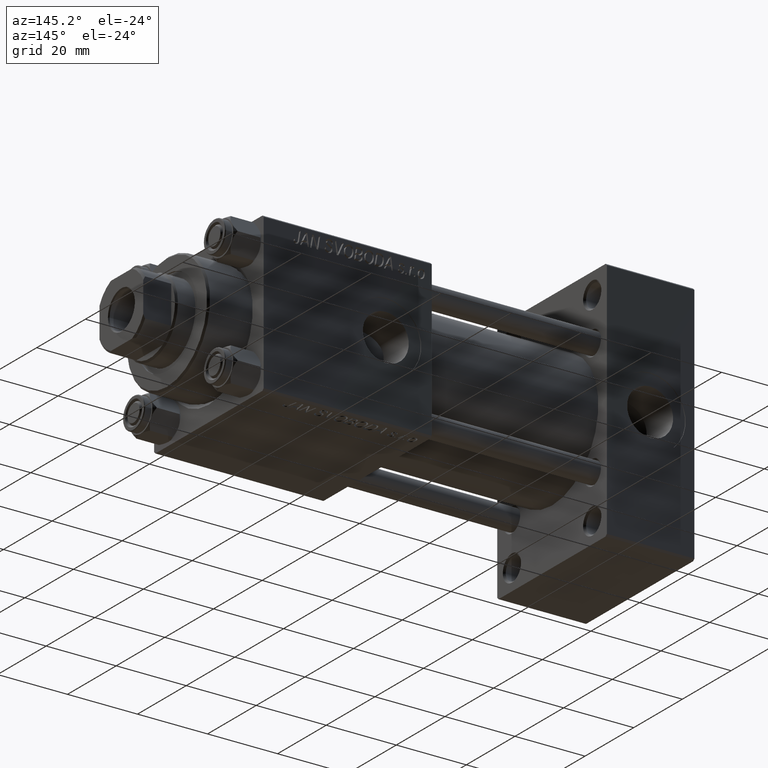
[diagram: clean part render]
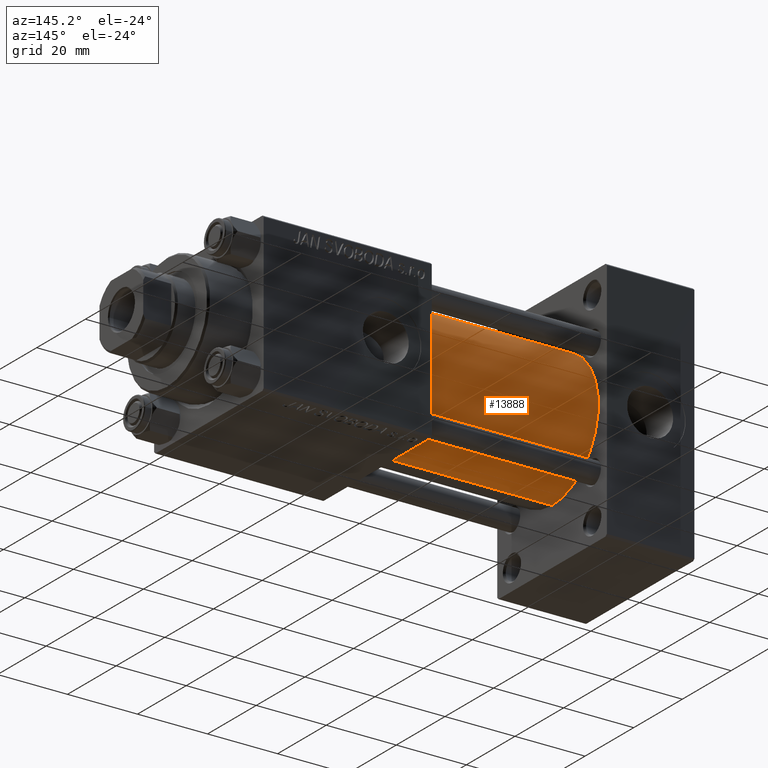
[diagram: same view with one face highlighted and labeled with its STEP entity id]
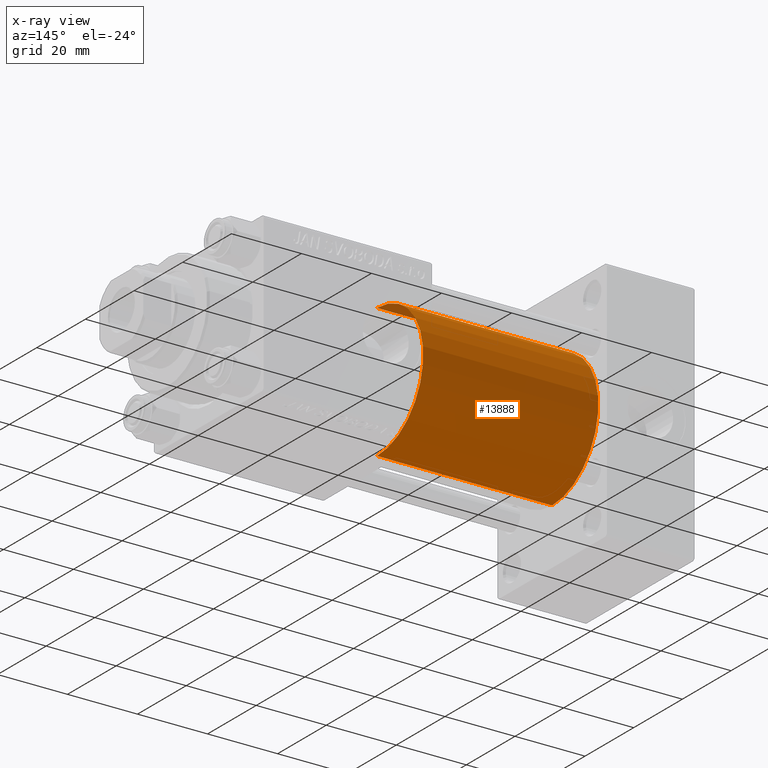
[diagram: x-ray of the same camera — body ghosted, the highlighted face saturated]
A machine part, auxiliary view. The second image highlights one B-rep face of the part: STEP entity #13888.
The next image is the same camera in x-ray: the body ghosted, the highlighted face saturated — about 1% of this face is hidden behind the body in this view.
In plain terms, the highlighted cylindrical surface (partial cylindrical patch) has radius 19 mm, axis along (-1, -0, -0).
Its self-contained STEP definition (entity closure, byte-faithful):
#2100 = EDGE_LOOP ( 'NONE', ( #43985, #23887, #33361, #40121 ) ) ;
#3200 = VERTEX_POINT ( 'NONE', #33946 ) ;
#3301 = EDGE_CURVE ( 'NONE', #3200, #23792, #48404, .T. ) ;
#3533 = CARTESIAN_POINT ( 'NONE',  ( 75.00000000000001421, -2.602085213965210642E-15, 19.00000000000000000 ) ) ;
#4736 = AXIS2_PLACEMENT_3D ( 'NONE', #35192, #42292, #46339 ) ;
#4811 = LINE ( 'NONE', #8606, #36434 ) ;
#4818 = AXIS2_PLACEMENT_3D ( 'NONE', #27361, #31143, #42526 ) ;
#7087 = DIRECTION ( 'NONE',  ( -1.000000000000000000, -0.000000000000000000, -0.000000000000000000 ) ) ;
#8445 = EDGE_CURVE ( 'NONE', #23792, #47648, #4811, .T. ) ;
#8606 = CARTESIAN_POINT ( 'NONE',  ( 75.00000000000001421, -2.602085213965210642E-15, 19.00000000000000000 ) ) ;
#9543 = LINE ( 'NONE', #24953, #17556 ) ;
#13888 = ADVANCED_FACE ( 'NONE', ( #40714 ), #47300, .T. ) ;
#17556 = VECTOR ( 'NONE', #32770, 1000.000000000000000 ) ;
#18219 = CARTESIAN_POINT ( 'NONE',  ( 75.00000000000001421, -2.602085213965210642E-15, 0.000000000000000000 ) ) ;
#18447 = CIRCLE ( 'NONE', #4736, 19.00000000000000000 ) ;
#22238 = VERTEX_POINT ( 'NONE', #27900 ) ;
#23792 = VERTEX_POINT ( 'NONE', #3533 ) ;
#23887 = ORIENTED_EDGE ( 'NONE', *, *, #40790, .T. ) ;
#24953 = CARTESIAN_POINT ( 'NONE',  ( 75.00000000000001421, -2.752562955852396712E-16, -19.00000000000000000 ) ) ;
#27361 = CARTESIAN_POINT ( 'NONE',  ( 75.00000000000001421, -2.602085213965210642E-15, 0.000000000000000000 ) ) ;
#27900 = CARTESIAN_POINT ( 'NONE',  ( 25.00000000000000000, -2.752562955852396712E-16, -19.00000000000000000 ) ) ;
#30315 = DIRECTION ( 'NONE',  ( 0.000000000000000000, 0.000000000000000000, 1.000000000000000000 ) ) ;
#31143 = DIRECTION ( 'NONE',  ( 1.000000000000000000, 0.000000000000000000, 0.000000000000000000 ) ) ;
#32770 = DIRECTION ( 'NONE',  ( -1.000000000000000000, -0.000000000000000000, -0.000000000000000000 ) ) ;
#33361 = ORIENTED_EDGE ( 'NONE', *, *, #43698, .T. ) ;
#33946 = CARTESIAN_POINT ( 'NONE',  ( 75.00000000000001421, -2.752562955852396712E-16, -19.00000000000000000 ) ) ;
#35192 = CARTESIAN_POINT ( 'NONE',  ( 25.00000000000000000, -2.602085213965210642E-15, 0.000000000000000000 ) ) ;
#36434 = VECTOR ( 'NONE', #39922, 1000.000000000000000 ) ;
#39605 = CARTESIAN_POINT ( 'NONE',  ( 25.00000000000000000, -2.602085213965210642E-15, 19.00000000000000000 ) ) ;
#39922 = DIRECTION ( 'NONE',  ( -1.000000000000000000, -0.000000000000000000, -0.000000000000000000 ) ) ;
#40121 = ORIENTED_EDGE ( 'NONE', *, *, #8445, .F. ) ;
#40714 = FACE_OUTER_BOUND ( 'NONE', #2100, .T. ) ;
#40790 = EDGE_CURVE ( 'NONE', #3200, #22238, #9543, .T. ) ;
#42292 = DIRECTION ( 'NONE',  ( 1.000000000000000000, -0.000000000000000000, 0.000000000000000000 ) ) ;
#42526 = DIRECTION ( 'NONE',  ( 0.000000000000000000, 0.000000000000000000, -1.000000000000000000 ) ) ;
#43698 = EDGE_CURVE ( 'NONE', #22238, #47648, #18447, .T. ) ;
#43985 = ORIENTED_EDGE ( 'NONE', *, *, #3301, .F. ) ;
#44614 = AXIS2_PLACEMENT_3D ( 'NONE', #18219, #7087, #30315 ) ;
#46339 = DIRECTION ( 'NONE',  ( 0.000000000000000000, 0.000000000000000000, 1.000000000000000000 ) ) ;
#47300 = CYLINDRICAL_SURFACE ( 'NONE', #44614, 19.00000000000000000 ) ;
#47648 = VERTEX_POINT ( 'NONE', #39605 ) ;
#48404 = CIRCLE ( 'NONE', #4818, 19.00000000000000000 ) ;